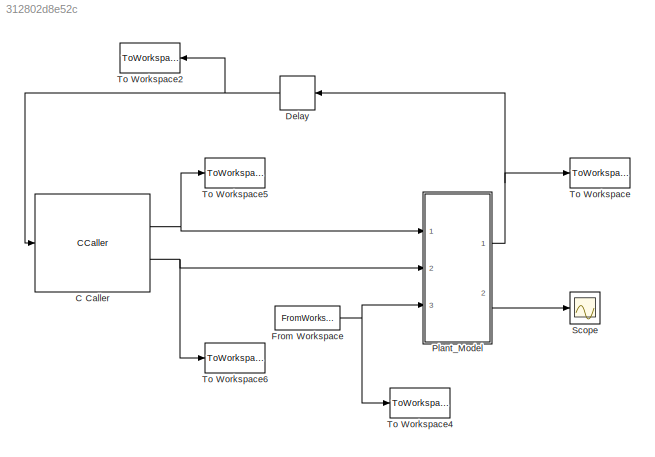
MODEL slx_312802d8e52c
KIND model
CONFIG AbsTol = auto
CONFIG EnableMultiTasking = off
CONFIG FixedStep = 0.5
CONFIG MaxStep = auto
CONFIG MinStep = auto
CONFIG RelTol = 1e-3
CONFIG SampleTimeConstraint = Unconstrained
CONFIG Solver = FixedStepDiscrete
CONFIG SolverName = FixedStepDiscrete
CONFIG StartTime = 0.0
CONFIG StopTime = 10
BLOCK [CCaller] C Caller
  A = A
  At = At
  B = B
  Bt = Bt
  FunctionName = fmpcsolve
  PortSpecificationStruct = %)30     .    ,"    8    (     @         %    "    !8    !     0         %  0 "0    $    V    07)G3F%M90  4&]R=$YA;64 4V-O<&4     26YD97@     5'EP90      4VEZ90         .    ,     8    (    !          %    "     $    !     0         0  $ 00    X    P    !@    @    $          4    (     0    $    !         !   0!!    #@   $     &    "     0         !0    @    !    "0    $         $     D   !087)A;6...<+10605ch>
  Ports = [1, 2]
  Q = Q
  Qf = Qf
  R = R
  T = T
  eyem = eyem
  eyen = eyen
  kappa = kappa
  m = m
  n = n
  niters = niters
  nz = nz
  z = z
  z0 = z0
  zmax = zmax
  zmin = zmin
BLOCK [Delay] Delay
  DelayLength = 1
  InitialCondition = x0
  InputPortMap = u0
  InputProcessing = Inherited
  Ports = [1, 1]
BLOCK [FromWorkspace] From Workspace
  OutputAfterFinalValue = Setting to zero
  SampleTime = 0.5
  VariableName = w
  ZeroCross = on
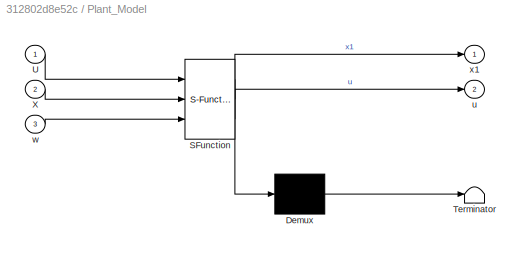
BLOCK [SubSystem] Plant_Model
  ErrorFcn = Stateflow.Translate.translate
  PermitHierarchicalResolution = ExplicitOnly
  Ports = [3, 2]
  RequestExecContextInheritance = off
  SFBlockType = MATLAB Function
  TreatAsAtomicUnit = on
BLOCK [Demux] Plant_Model/ Demux 
  Outputs = 1
  Ports = [1, 1]
BLOCK [S-Function] Plant_Model/ SFunction 
  EnableBusSupport = on
  FunctionName = sf_sfun
  Parameters = A,B,T,nm
  PortCounts = [3 3]
  Ports = [3, 3]
  SFcnIsStateOwnerBlock = off
  SFunctionDeploymentMode = off
  Tag = Stateflow S-Function fMPC_Verf 1
BLOCK [Terminator] Plant_Model/ Terminator 
BLOCK [Inport] Plant_Model/U
  IconDisplay = Port number
BLOCK [Inport] Plant_Model/X
  IconDisplay = Port number
  Port = 2
BLOCK [Outport] Plant_Model/u
  IconDisplay = Port number
  Port = 2
BLOCK [Inport] Plant_Model/w
  IconDisplay = Port number
  Port = 3
BLOCK [Outport] Plant_Model/x1
  IconDisplay = Port number
BLOCK [Scope] Scope
  Floating = off
  NumInputPorts = 1
  Ports = [1]
  ScopeSpecificationString = Simulink.scopes.TimeScopeBlockCfg('CurrentConfiguration', extmgr.ConfigurationSet(extmgr.Configuration('Core','General UI',true),extmgr.Configuration('Core','Source UI',true),extmgr.Configuration('Sources','WiredSimulink',true),extmgr.Configuration('Visuals','Time Domain',true,'SerializedDisplays',{struct('MinYLimReal','-1.87833','MaxYLimReal','1.09159','YLabelReal','','MinYLimMag','0.00000','MaxY...<+1348ch>
BLOCK [ToWorkspace] To Workspace
  FixptAsFi = on
  MaxDataPoints = inf
  Ports = [1]
  SampleTime = -1
  Save2DSignal = 3-D array (concatenate along third dimension)
  SaveFormat = Structure With Time
  VariableName = x_out
BLOCK [ToWorkspace] To Workspace2
  FixptAsFi = on
  MaxDataPoints = inf
  Ports = [1]
  SampleTime = -1
  Save2DSignal = 3-D array (concatenate along third dimension)
  SaveFormat = Structure With Time
  VariableName = x_delay
BLOCK [ToWorkspace] To Workspace4
  FixptAsFi = on
  MaxDataPoints = inf
  Ports = [1]
  SampleTime = -1
  Save2DSignal = 3-D array (concatenate along third dimension)
  SaveFormat = Structure With Time
  VariableName = w_out
BLOCK [ToWorkspace] To Workspace5
  FixptAsFi = on
  MaxDataPoints = inf
  Ports = [1]
  SampleTime = -1
  Save2DSignal = 3-D array (concatenate along third dimension)
  SaveFormat = Structure With Time
  VariableName = U_out
BLOCK [ToWorkspace] To Workspace6
  FixptAsFi = on
  MaxDataPoints = inf
  Ports = [1]
  SampleTime = -1
  Save2DSignal = 3-D array (concatenate along third dimension)
  SaveFormat = Structure With Time
  VariableName = X_out
NET C Caller:1 -> Plant_Model:1, To Workspace5:1
NET C Caller:2 -> Plant_Model:2, To Workspace6:1
NET Delay:1 -> C Caller:1, To Workspace2:1
NET From Workspace:1 -> Plant_Model:3, To Workspace4:1
NET Plant_Model:1 -> Delay:1, To Workspace:1
LINE Plant_Model:2 -> Scope:1
note: NET lines group one-source signal fan-out (src -> all destinations, sorted); 1:1 wires keep LINE
CHART Plant_Model states=1 transitions=1
  STATE_LABEL 'eML_blk_kernel()'
  STATE_LABEL 'SCRIPT:\nfunction [x1,u]  = Plant(U,X,A,nm, T, B, w)\n\n%Taking the first entry of U\nu = U(:,1);\n\n%Taking the first entry of X\nx = X(:,1);\n\n%Updating State Equation\nx1 =A*x+B*u+w;'
